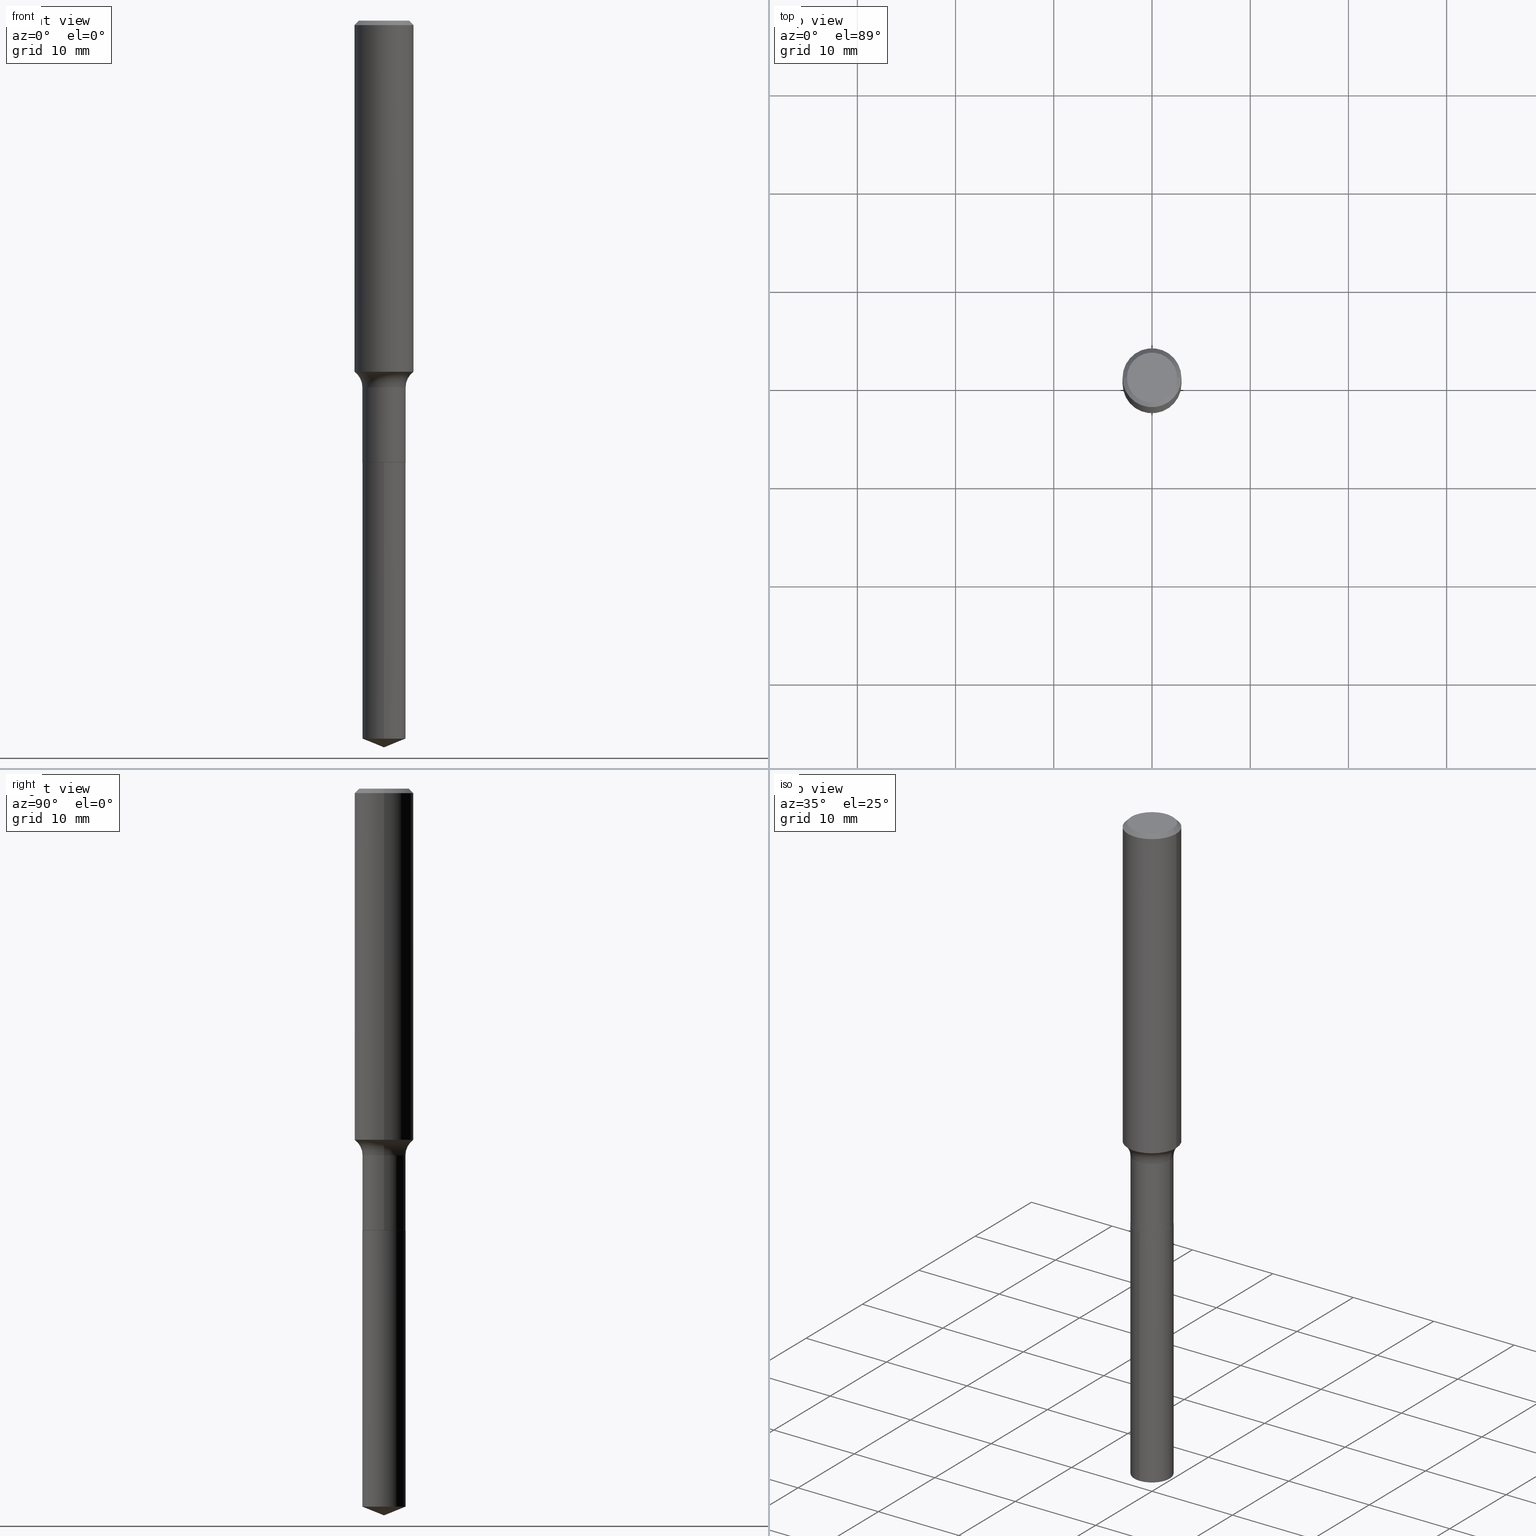
[diagram: canonical four-view strip — front | top / right | iso, engineering-drawing reading convention]
A machine part, canonical four-view strip (front | top / right | iso — engineering-drawing reading convention). The complete STEP part file that produces these views, byte-faithful:
ISO-10303-21;
HEADER;
FILE_DESCRIPTION (( 'STEP AP203' ),
    '1' );
FILE_NAME ('69237.STEP',
    '2024-04-19T17:28:28',
    ( '' ),
    ( '' ),
    'SwSTEP 2.0',
    'SolidWorks 2023',
    '' );
FILE_SCHEMA (( 'CONFIG_CONTROL_DESIGN' ));
ENDSEC;

DATA;
#1 = CARTESIAN_POINT ( 'NONE',  ( 7.123532340689703884E-29, -1.017085454053675039E-14, -2.912999999999999812 ) ) ;
#2 = DIRECTION ( 'NONE',  ( -2.445428197971062335E-29, 3.491539492116975712E-15, 1.000000000000000000 ) ) ;
#3 = CIRCLE ( 'NONE', #191, 0.1180999999999999966 ) ;
#4 = CARTESIAN_POINT ( 'NONE',  ( 0.000000000000000000, 0.000000000000000000, 0.000000000000000000 ) ) ;
#5 = EDGE_LOOP ( 'NONE', ( #470, #190, #327, #266 ) ) ;
#6 = DATE_AND_TIME ( #202, #309 ) ;
#7 = CARTESIAN_POINT ( 'NONE',  ( 0.08609999999999996823, -6.785693982041650218E-15, -1.771299999999999653 ) ) ;
#8 = CONICAL_SURFACE ( 'NONE', #263, 0.1180999999999999966, 0.7853981633974452814 ) ;
#9 = APPROVAL_PERSON_ORGANIZATION ( #468, #20, #301 ) ;
#10 = CALENDAR_DATE ( 2024, 19, 4 ) ;
#11 = CARTESIAN_POINT ( 'NONE',  ( -0.1180999999999999966, -1.648688559709055710E-15, -0.01771500000000011607 ) ) ;
#12 = DIRECTION ( 'NONE',  ( -6.982962677686265133E-15, -1.000000000000000000, 3.498761904101795214E-15 ) ) ;
#13 = CALENDAR_DATE ( 2024, 19, 4 ) ;
#14 = CARTESIAN_POINT ( 'NONE',  ( 4.331658896395732410E-29, -6.184460895492863090E-15, -1.771299999999999653 ) ) ;
#15 = CALENDAR_DATE ( 2024, 19, 4 ) ;
#16 = DIRECTION ( 'NONE',  ( 1.000000000000000000, -6.982962677686266711E-15, 0.000000000000000000 ) ) ;
#17 = CARTESIAN_POINT ( 'NONE',  ( 4.331658896395732410E-29, -6.184460895492863090E-15, -1.771299999999999653 ) ) ;
#18 = EDGE_CURVE ( 'NONE', #145, #410, #46, .T. ) ;
#19 = DIRECTION ( 'NONE',  ( -2.445468806185136597E-29, 3.491481338843145583E-15, 1.000000000000000000 ) ) ;
#20 = APPROVAL ( #386, 'UNSPECIFIED' ) ;
#21 = CIRCLE ( 'NONE', #252, 0.08659999999999998255 ) ;
#22 = CARTESIAN_POINT ( 'NONE',  ( 4.331658896395732410E-29, -6.184460895492863090E-15, -1.771299999999999653 ) ) ;
#23 = PLANE ( 'NONE',  #89 ) ;
#24 = LINE ( 'NONE', #489, #467 ) ;
#25 = VERTEX_POINT ( 'NONE', #50 ) ;
#26 = ORIENTED_EDGE ( 'NONE', *, *, #211, .T. ) ;
#27 = AXIS2_PLACEMENT_3D ( 'NONE', #144, #245, #105 ) ;
#28 = CARTESIAN_POINT ( 'NONE',  ( -0.1645999999999999408, -3.962924225038298547E-15, -1.469999999999999529 ) ) ;
#29 = ORIENTED_EDGE ( 'NONE', *, *, #255, .F. ) ;
#30 = ADVANCED_FACE ( 'NONE', ( #374 ), #333, .T. ) ;
#31 = DIRECTION ( 'NONE',  ( -0.7071067811865453523, 2.468850131082234184E-15, -0.7071067811865496822 ) ) ;
#32 = VERTEX_POINT ( 'NONE', #256 ) ;
#33 = EDGE_CURVE ( 'NONE', #32, #249, #412, .T. ) ;
#34 = EDGE_LOOP ( 'NONE', ( #336, #157, #66, #114 ) ) ;
#35 = ORIENTED_EDGE ( 'NONE', *, *, #116, .F. ) ;
#36 = AXIS2_PLACEMENT_3D ( 'NONE', #87, #159, #298 ) ;
#37 = DIRECTION ( 'NONE',  ( -6.982962677686265922E-15, -1.000000000000000000, 3.154558884138872662E-15 ) ) ;
#38 = CARTESIAN_POINT ( 'NONE',  ( 3.441694406790502504E-29, -4.913827469365863983E-15, -1.407376122764555149 ) ) ;
#39 = VERTEX_POINT ( 'NONE', #11 ) ;
#40 = CARTESIAN_POINT ( 'NONE',  ( 0.08659999999999996867, -6.047245678876305299E-16, 4.222769087839279152E-30 ) ) ;
#41 = APPROVAL_DATE_TIME ( #228, #304 ) ;
#42 = ADVANCED_BREP_SHAPE_REPRESENTATION ( '69237', ( #287, #139, #427 ), #147 ) ;
#43 = ORIENTED_EDGE ( 'NONE', *, *, #192, .F. ) ;
#44 = EDGE_CURVE ( 'NONE', #185, #303, #398, .T. ) ;
#45 = LINE ( 'NONE', #196, #387 ) ;
#46 = CIRCLE ( 'NONE', #314, 0.08609999999999996823 ) ;
#47 = DIRECTION ( 'NONE',  ( 1.000000000000000000, -6.982962677686264344E-15, 0.000000000000000000 ) ) ;
#48 = CIRCLE ( 'NONE', #59, 0.1181000000000001632 ) ;
#49 = EDGE_CURVE ( 'NONE', #410, #145, #404, .T. ) ;
#50 = CARTESIAN_POINT ( 'NONE',  ( 0.1181000000000001909, -5.738515361600613034E-15, -1.407376122764555149 ) ) ;
#51 =( LENGTH_UNIT ( ) NAMED_UNIT ( * ) SI_UNIT ( $, .METRE. ) );
#52 = EDGE_CURVE ( 'NONE', #249, #32, #167, .T. ) ;
#53 = LINE ( 'NONE', #163, #73 ) ;
#54 = DIRECTION ( 'NONE',  ( 1.000000000000000000, -6.982962677686264344E-15, 0.000000000000000000 ) ) ;
#55 = APPROVAL_STATUS ( 'not_yet_approved' ) ;
#56 = DIRECTION ( 'NONE',  ( 1.000000000000000000, -6.982962677686266711E-15, 4.876176775795936353E-29 ) ) ;
#57 = CARTESIAN_POINT ( 'NONE',  ( 5.011033706304132718E-46, -7.154428071060963220E-32, -2.049109640503330010E-17 ) ) ;
#58 = TOROIDAL_SURFACE ( 'NONE', #126, 0.1645999999999999408, 0.07799999999999999989 ) ;
#59 = AXIS2_PLACEMENT_3D ( 'NONE', #460, #259, #340 ) ;
#60 = CARTESIAN_POINT ( 'NONE',  ( 7.038041986961636871E-29, -1.004858720652032268E-14, -2.878011328842675631 ) ) ;
#61 = DIRECTION ( 'NONE',  ( -2.445468806185136597E-29, 3.491481338843145583E-15, 1.000000000000000000 ) ) ;
#62 = FACE_OUTER_BOUND ( 'NONE', #187, .T. ) ;
#63 = DIRECTION ( 'NONE',  ( 6.588037525764800757E-15, 0.9271838545667901998, 0.3746065934159050204 ) ) ;
#64 = ADVANCED_FACE ( 'NONE', ( #311 ), #438, .T. ) ;
#65 = CARTESIAN_POINT ( 'NONE',  ( 6.153300091683171414E-16, 0.08659999999998996278, -2.878011328842676075 ) ) ;
#66 = ORIENTED_EDGE ( 'NONE', *, *, #481, .F. ) ;
#67 = AXIS2_PLACEMENT_3D ( 'NONE', #212, #168, #131 ) ;
#68 = EDGE_CURVE ( 'NONE', #410, #418, #357, .T. ) ;
#69 = LOCAL_TIME ( 13, 28, 28.00000000000000000, #279 ) ;
#70 = ORIENTED_EDGE ( 'NONE', *, *, #18, .F. ) ;
#71 = CC_DESIGN_PERSON_AND_ORGANIZATION_ASSIGNMENT ( #478, #445, ( #480 ) ) ;
#72 = ORIENTED_EDGE ( 'NONE', *, *, #215, .T. ) ;
#73 = VECTOR ( 'NONE', #91, 39.37007874015748143 ) ;
#74 = ORIENTED_EDGE ( 'NONE', *, *, #211, .F. ) ;
#75 = DIRECTION ( 'NONE',  ( -6.982962677686266711E-15, -1.000000000000000000, 3.491481338843145583E-15 ) ) ;
#76 = ORIENTED_EDGE ( 'NONE', *, *, #250, .F. ) ;
#77 = DIRECTION ( 'NONE',  ( 1.000000000000000000, -6.982962677686267499E-15, 4.883557194083112901E-29 ) ) ;
#78 = EDGE_CURVE ( 'NONE', #240, #417, #361, .T. ) ;
#79 = VECTOR ( 'NONE', #342, 39.37007874015748143 ) ;
#80 = LOCAL_TIME ( 13, 28, 28.00000000000000000, #195 ) ;
#81 = DIRECTION ( 'NONE',  ( -6.474490251793187306E-15, -0.9271838545667875353, 0.3746065934159114597 ) ) ;
#82 = DATE_AND_TIME ( #13, #206 ) ;
#83 = MECHANICAL_CONTEXT ( 'NONE', #230, 'mechanical' ) ;
#84 = APPROVAL_DATE_TIME ( #82, #20 ) ;
#85 = ORIENTED_EDGE ( 'NONE', *, *, #255, .T. ) ;
#86 = ADVANCED_FACE ( 'NONE', ( #316 ), #93, .T. ) ;
#87 = CARTESIAN_POINT ( 'NONE',  ( 4.331658896395732410E-29, -6.184460895492863090E-15, -1.771299999999999653 ) ) ;
#88 = APPROVAL_STATUS ( 'not_yet_approved' ) ;
#89 = AXIS2_PLACEMENT_3D ( 'NONE', #448, #97, #475 ) ;
#90 = APPROVAL_PERSON_ORGANIZATION ( #95, #477, #447 ) ;
#91 = DIRECTION ( 'NONE',  ( -2.445468806185136877E-29, 3.491481338843145188E-15, 1.000000000000000000 ) ) ;
#92 = DIRECTION ( 'NONE',  ( -6.982962677686265922E-15, -1.000000000000000000, 3.154558884138872662E-15 ) ) ;
#93 = CYLINDRICAL_SURFACE ( 'NONE', #221, 0.08659999999999998255 ) ;
#94 = ADVANCED_FACE ( 'NONE', ( #443 ), #136, .T. ) ;
#95 = PERSON_AND_ORGANIZATION ( #217, #318 ) ;
#96 = CIRCLE ( 'NONE', #413, 0.07799999999999999989 ) ;
#97 = DIRECTION ( 'NONE',  ( 2.438088387897960049E-29, -3.491481338843145188E-15, -1.000000000000000000 ) ) ;
#98 = DIRECTION ( 'NONE',  ( -2.445468806185136877E-29, 3.491481338843145188E-15, 1.000000000000000000 ) ) ;
#99 = DIRECTION ( 'NONE',  ( -2.445428197971062335E-29, 3.491539492116975712E-15, 1.000000000000000000 ) ) ;
#100 = ORIENTED_EDGE ( 'NONE', *, *, #250, .T. ) ;
#101 = DIRECTION ( 'NONE',  ( -2.445468806185136597E-29, 3.491481338843145583E-15, 1.000000000000000000 ) ) ;
#102 = FACE_OUTER_BOUND ( 'NONE', #429, .T. ) ;
#103 = CARTESIAN_POINT ( 'NONE',  ( 3.594839145092149699E-29, -5.132477568099422441E-15, -1.469999999999999529 ) ) ;
#104 = ORIENTED_EDGE ( 'NONE', *, *, #322, .T. ) ;
#105 = DIRECTION ( 'NONE',  ( -6.982962677686265922E-15, -1.000000000000000000, 6.309117768277745325E-15 ) ) ;
#106 = CARTESIAN_POINT ( 'NONE',  ( 4.332147990156998495E-31, -6.185159191760672860E-17, -0.01771500000000011607 ) ) ;
#107 = CC_DESIGN_DATE_AND_TIME_ASSIGNMENT ( #433, #428, ( #243 ) ) ;
#108 = AXIS2_PLACEMENT_3D ( 'NONE', #103, #19, #281 ) ;
#109 = AXIS2_PLACEMENT_3D ( 'NONE', #38, #268, #261 ) ;
#110 = CARTESIAN_POINT ( 'NONE',  ( -0.1181000000000001909, -4.074676498433184208E-15, -1.407376122764555149 ) ) ;
#111 = ADVANCED_FACE ( 'NONE', ( #237 ), #208, .F. ) ;
#112 = APPLICATION_CONTEXT ( 'configuration controlled 3d designs of mechanical parts and assemblies' ) ;
#113 = ORIENTED_EDGE ( 'NONE', *, *, #192, .T. ) ;
#114 = ORIENTED_EDGE ( 'NONE', *, *, #411, .F. ) ;
#115 = AXIS2_PLACEMENT_3D ( 'NONE', #397, #61, #56 ) ;
#116 = EDGE_CURVE ( 'NONE', #145, #120, #171, .T. ) ;
#117 = DIRECTION ( 'NONE',  ( 2.445468806185136597E-29, -3.491481338843145583E-15, -1.000000000000000000 ) ) ;
#118 = EDGE_LOOP ( 'NONE', ( #273, #113, #154 ) ) ;
#119 = ORIENTED_EDGE ( 'NONE', *, *, #68, .F. ) ;
#120 = VERTEX_POINT ( 'NONE', #276 ) ;
#121 = EDGE_LOOP ( 'NONE', ( #294, #238, #26, #188 ) ) ;
#122 = CARTESIAN_POINT ( 'NONE',  ( -6.047245678875604199E-16, -0.08660000000001008558, -2.878011328842675187 ) ) ;
#123 = ORIENTED_EDGE ( 'NONE', *, *, #371, .F. ) ;
#124 = FACE_OUTER_BOUND ( 'NONE', #118, .T. ) ;
#125 = CLOSED_SHELL ( 'NONE', ( #313, #355, #244, #177, #30, #135, #170, #94, #180, #277, #111, #141 ) ) ;
#126 = AXIS2_PLACEMENT_3D ( 'NONE', #323, #407, #77 ) ;
#127 = ORIENTED_EDGE ( 'NONE', *, *, #33, .F. ) ;
#128 = CARTESIAN_POINT ( 'NONE',  ( 0.1180999999999999966, -8.720764054544246253E-16, -0.01771500000000011607 ) ) ;
#129 = ORIENTED_EDGE ( 'NONE', *, *, #173, .T. ) ;
#130 = PERSON_AND_ORGANIZATION_ROLE ( 'design_supplier' ) ;
#131 = DIRECTION ( 'NONE',  ( 1.000000000000000000, -6.982962677686266711E-15, 4.875668750515085695E-29 ) ) ;
#132 = AXIS2_PLACEMENT_3D ( 'NONE', #246, #367, #369 ) ;
#133 = CARTESIAN_POINT ( 'NONE',  ( 0.1180999999999999966, -8.865394841523548556E-16, -0.01771500000000011607 ) ) ;
#134 = DIRECTION ( 'NONE',  ( -2.445468806185136597E-29, 3.491481338843145583E-15, 1.000000000000000000 ) ) ;
#135 = ADVANCED_FACE ( 'NONE', ( #440 ), #203, .T. ) ;
#136 = CYLINDRICAL_SURFACE ( 'NONE', #146, 0.1181000000000000799 ) ;
#137 = AXIS2_PLACEMENT_3D ( 'NONE', #288, #338, #326 ) ;
#138 = CARTESIAN_POINT ( 'NONE',  ( 0.000000000000000000, 0.000000000000000000, 0.000000000000000000 ) ) ;
#139 = MANIFOLD_SOLID_BREP ( 'Body-Move/Copy2[2]', #125 ) ;
#140 = CC_DESIGN_DATE_AND_TIME_ASSIGNMENT ( #6, #351, ( #155 ) ) ;
#141 = ADVANCED_FACE ( 'NONE', ( #164 ), #324, .T. ) ;
#142 = DIRECTION ( 'NONE',  ( -2.445428197971062615E-29, 3.491539492116975712E-15, 1.000000000000000000 ) ) ;
#143 = DIRECTION ( 'NONE',  ( 2.445428197971062055E-29, -3.491539492116975712E-15, -1.000000000000000000 ) ) ;
#144 = CARTESIAN_POINT ( 'NONE',  ( 7.038041986961636871E-29, -1.004858720652032268E-14, -2.878011328842675631 ) ) ;
#145 = VERTEX_POINT ( 'NONE', #360 ) ;
#146 = AXIS2_PLACEMENT_3D ( 'NONE', #138, #134, #272 ) ;
#147 =( GEOMETRIC_REPRESENTATION_CONTEXT ( 3 ) GLOBAL_UNCERTAINTY_ASSIGNED_CONTEXT ( ( #472 ) ) GLOBAL_UNIT_ASSIGNED_CONTEXT ( ( #431, #165, #306 ) ) REPRESENTATION_CONTEXT ( 'NONE', 'WORKASPACE' ) );
#148 = ORIENTED_EDGE ( 'NONE', *, *, #186, .F. ) ;
#149 = ORIENTED_EDGE ( 'NONE', *, *, #359, .F. ) ;
#150 = ORIENTED_EDGE ( 'NONE', *, *, #409, .F. ) ;
#151 = ORIENTED_EDGE ( 'NONE', *, *, #33, .T. ) ;
#152 = AXIS2_PLACEMENT_3D ( 'NONE', #483, #101, #239 ) ;
#153 = DIRECTION ( 'NONE',  ( -2.445468806185136597E-29, 3.491481338843145583E-15, 1.000000000000000000 ) ) ;
#154 = ORIENTED_EDGE ( 'NONE', *, *, #302, .F. ) ;
#155 = PRODUCT_DEFINITION ( 'UNKNOWN', '', #363, #439 ) ;
#156 = CARTESIAN_POINT ( 'NONE',  ( 0.1181000000000000799, -8.246878922347486570E-16, 5.758764772215004644E-30 ) ) ;
#157 = ORIENTED_EDGE ( 'NONE', *, *, #225, .T. ) ;
#158 = EDGE_LOOP ( 'NONE', ( #224, #337, #383, #76 ) ) ;
#159 = DIRECTION ( 'NONE',  ( -2.445428197971062335E-29, 3.491539492116975712E-15, 1.000000000000000000 ) ) ;
#160 = DIRECTION ( 'NONE',  ( -2.445468806185136597E-29, 3.491481338843145583E-15, 1.000000000000000000 ) ) ;
#161 = COORDINATED_UNIVERSAL_TIME_OFFSET ( 5, 0, .BEHIND. ) ;
#162 = CARTESIAN_POINT ( 'NONE',  ( 0.08659999999999998255, -6.787439722711072510E-15, -1.770799999999999930 ) ) ;
#163 = CARTESIAN_POINT ( 'NONE',  ( -0.08659999999999996867, 6.153300091682465383E-16, -4.259797788160746705E-30 ) ) ;
#164 = FACE_OUTER_BOUND ( 'NONE', #461, .T. ) ;
#165 =( NAMED_UNIT ( * ) PLANE_ANGLE_UNIT ( ) SI_UNIT ( $, .RADIAN. ) );
#166 = COORDINATED_UNIVERSAL_TIME_OFFSET ( 5, 0, .BEHIND. ) ;
#167 = CIRCLE ( 'NONE', #67, 0.1003850000000000159 ) ;
#168 = DIRECTION ( 'NONE',  ( -2.445468806185136597E-29, 3.491481338843145583E-15, 1.000000000000000000 ) ) ;
#169 = CIRCLE ( 'NONE', #219, 0.08659999999999998255 ) ;
#170 = ADVANCED_FACE ( 'NONE', ( #175 ), #58, .F. ) ;
#171 = LINE ( 'NONE', #278, #426 ) ;
#172 = CARTESIAN_POINT ( 'NONE',  ( 4.332147990156998495E-31, -6.185159191760672860E-17, -0.01771500000000011607 ) ) ;
#173 = EDGE_CURVE ( 'NONE', #424, #416, #21, .T. ) ;
#174 = AXIS2_PLACEMENT_3D ( 'NONE', #450, #143, #321 ) ;
#175 = FACE_OUTER_BOUND ( 'NONE', #121, .T. ) ;
#176 = DIRECTION ( 'NONE',  ( -2.445468806185136597E-29, 3.491481338843145583E-15, 1.000000000000000000 ) ) ;
#177 = ADVANCED_FACE ( 'NONE', ( #491 ), #214, .F. ) ;
#178 = LINE ( 'NONE', #284, #458 ) ;
#179 = ORIENTED_EDGE ( 'NONE', *, *, #232, .T. ) ;
#180 = ADVANCED_FACE ( 'NONE', ( #293 ), #414, .T. ) ;
#181 = AXIS2_PLACEMENT_3D ( 'NONE', #189, #2, #292 ) ;
#182 = EDGE_LOOP ( 'NONE', ( #253, #251, #380, #74 ) ) ;
#183 = DIRECTION ( 'NONE',  ( -2.445428197971062615E-29, 3.491539492116975712E-15, 1.000000000000000000 ) ) ;
#184 = EDGE_LOOP ( 'NONE', ( #194, #213, #248, #218 ) ) ;
#185 = VERTEX_POINT ( 'NONE', #247 ) ;
#186 = EDGE_CURVE ( 'NONE', #303, #424, #415, .T. ) ;
#187 = EDGE_LOOP ( 'NONE', ( #455, #370, #317, #119 ) ) ;
#188 = ORIENTED_EDGE ( 'NONE', *, *, #78, .T. ) ;
#189 = CARTESIAN_POINT ( 'NONE',  ( -8.915309643750284617E-28, 1.272914331953719616E-13, 36.45707874015747763 ) ) ;
#190 = ORIENTED_EDGE ( 'NONE', *, *, #371, .T. ) ;
#191 = AXIS2_PLACEMENT_3D ( 'NONE', #466, #160, #193 ) ;
#192 = EDGE_CURVE ( 'NONE', #185, #379, #331, .T. ) ;
#193 = DIRECTION ( 'NONE',  ( 1.000000000000000000, -6.982962677686266711E-15, 0.000000000000000000 ) ) ;
#194 = ORIENTED_EDGE ( 'NONE', *, *, #359, .T. ) ;
#195 = COORDINATED_UNIVERSAL_TIME_OFFSET ( 5, 0, .BEHIND. ) ;
#196 = CARTESIAN_POINT ( 'NONE',  ( -0.1181000000000000799, 8.391509709326788873E-16, -5.809262341591047988E-30 ) ) ;
#197 = DIRECTION ( 'NONE',  ( 1.000000000000000000, 0.000000000000000000, 0.000000000000000000 ) ) ;
#198 = PERSON_AND_ORGANIZATION_ROLE ( 'creator' ) ;
#199 = AXIS2_PLACEMENT_3D ( 'NONE', #57, #482, #400 ) ;
#200 = AXIS2_PLACEMENT_3D ( 'NONE', #106, #204, #16 ) ;
#201 = DIRECTION ( 'NONE',  ( -2.445468806185136877E-29, 3.491481338843145188E-15, 1.000000000000000000 ) ) ;
#202 = CALENDAR_DATE ( 2024, 19, 4 ) ;
#203 = CYLINDRICAL_SURFACE ( 'NONE', #262, 0.08659999999999996867 ) ;
#204 = DIRECTION ( 'NONE',  ( -2.445468806185136597E-29, 3.491481338843145583E-15, 1.000000000000000000 ) ) ;
#205 = DIRECTION ( 'NONE',  ( 0.7071067811866320607, -2.468850131083142557E-15, 0.7071067811864629737 ) ) ;
#206 = LOCAL_TIME ( 13, 28, 28.00000000000000000, #161 ) ;
#207 = DIRECTION ( 'NONE',  ( -2.445428197971062335E-29, 3.491539492116975712E-15, 1.000000000000000000 ) ) ;
#208 = PLANE ( 'NONE',  #353 ) ;
#209 = PERSON_AND_ORGANIZATION ( #217, #318 ) ;
#210 = FACE_OUTER_BOUND ( 'NONE', #291, .T. ) ;
#211 = EDGE_CURVE ( 'NONE', #25, #240, #377, .T. ) ;
#212 = CARTESIAN_POINT ( 'NONE',  ( 5.011033706304132718E-46, -7.154428071060963220E-32, -2.049109640503330010E-17 ) ) ;
#213 = ORIENTED_EDGE ( 'NONE', *, *, #186, .T. ) ;
#214 = TOROIDAL_SURFACE ( 'NONE', #137, 0.1645999999999999408, 0.07799999999999999989 ) ;
#215 = EDGE_CURVE ( 'NONE', #120, #417, #53, .T. ) ;
#216 = ORIENTED_EDGE ( 'NONE', *, *, #52, .T. ) ;
#217 = PERSON ( 'UNSPECIFIED', 'UNSPECIFIED', 'UNSPECIFIED', ('UNSPECIFIED'), ('UNSPECIFIED'), ('UNSPECIFIED') ) ;
#218 = ORIENTED_EDGE ( 'NONE', *, *, #322, .F. ) ;
#219 = AXIS2_PLACEMENT_3D ( 'NONE', #282, #452, #241 ) ;
#220 = DIRECTION ( 'NONE',  ( 1.000000000000000000, -6.982962677686270655E-15, 0.000000000000000000 ) ) ;
#221 = AXIS2_PLACEMENT_3D ( 'NONE', #476, #354, #312 ) ;
#222 = CIRCLE ( 'NONE', #152, 0.08659999999999995479 ) ;
#223 = PERSON_AND_ORGANIZATION ( #217, #318 ) ;
#224 = ORIENTED_EDGE ( 'NONE', *, *, #225, .F. ) ;
#225 = EDGE_CURVE ( 'NONE', #332, #39, #45, .T. ) ;
#226 = CARTESIAN_POINT ( 'NONE',  ( 0.000000000000000000, 0.000000000000000000, 0.000000000000000000 ) ) ;
#227 = DIRECTION ( 'NONE',  ( -2.445468806185136597E-29, 3.491481338843145583E-15, 1.000000000000000000 ) ) ;
#228 = DATE_AND_TIME ( #10, #280 ) ;
#229 = CIRCLE ( 'NONE', #132, 0.08659999999999998255 ) ;
#230 = APPLICATION_CONTEXT ( 'configuration controlled 3d designs of mechanical parts and assemblies' ) ;
#231 = DIRECTION ( 'NONE',  ( -2.438088387897960049E-29, 3.491481338843145188E-15, 1.000000000000000000 ) ) ;
#232 = EDGE_CURVE ( 'NONE', #418, #120, #169, .T. ) ;
#233 = CARTESIAN_POINT ( 'NONE',  ( 0.08659999999999995479, -5.737202135987053365E-15, -1.469999999999999529 ) ) ;
#234 = CARTESIAN_POINT ( 'NONE',  ( 0.000000000000000000, 0.000000000000000000, 0.000000000000000000 ) ) ;
#235 = APPROVAL_DATE_TIME ( #394, #477 ) ;
#236 = DIRECTION ( 'NONE',  ( -6.982962677686265922E-15, -1.000000000000000000, 6.309117768277745325E-15 ) ) ;
#237 = FACE_OUTER_BOUND ( 'NONE', #296, .T. ) ;
#238 = ORIENTED_EDGE ( 'NONE', *, *, #391, .F. ) ;
#239 = DIRECTION ( 'NONE',  ( 1.000000000000000000, -6.982962677686272233E-15, 0.000000000000000000 ) ) ;
#240 = VERTEX_POINT ( 'NONE', #233 ) ;
#241 = DIRECTION ( 'NONE',  ( 1.000000000000000000, -6.982962677686269866E-15, 0.000000000000000000 ) ) ;
#242 = CIRCLE ( 'NONE', #36, 0.08659999999999998255 ) ;
#243 = SECURITY_CLASSIFICATION ( '', '', #258 ) ;
#244 = ADVANCED_FACE ( 'NONE', ( #399 ), #392, .T. ) ;
#245 = DIRECTION ( 'NONE',  ( -2.445428197971062335E-29, 3.491539492116975712E-15, 1.000000000000000000 ) ) ;
#246 = CARTESIAN_POINT ( 'NONE',  ( 4.330436161992639608E-29, -6.182715154823442375E-15, -1.770799999999999930 ) ) ;
#247 = CARTESIAN_POINT ( 'NONE',  ( 7.123532340689705005E-29, -1.017085454053675039E-14, -2.912999999999999812 ) ) ;
#248 = ORIENTED_EDGE ( 'NONE', *, *, #492, .F. ) ;
#249 = VERTEX_POINT ( 'NONE', #449 ) ;
#250 = EDGE_CURVE ( 'NONE', #39, #285, #451, .T. ) ;
#251 = ORIENTED_EDGE ( 'NONE', *, *, #264, .T. ) ;
#252 = AXIS2_PLACEMENT_3D ( 'NONE', #419, #329, #37 ) ;
#253 = ORIENTED_EDGE ( 'NONE', *, *, #465, .F. ) ;
#254 = CARTESIAN_POINT ( 'NONE',  ( 0.1645999999999999408, -6.281873224846581411E-15, -1.469999999999999529 ) ) ;
#255 = EDGE_CURVE ( 'NONE', #32, #39, #24, .T. ) ;
#256 = CARTESIAN_POINT ( 'NONE',  ( -0.1003850000000000159, 7.319105043583384717E-16, -2.049109640503831060E-17 ) ) ;
#257 = ORIENTED_EDGE ( 'NONE', *, *, #420, .F. ) ;
#258 = SECURITY_CLASSIFICATION_LEVEL ( 'unclassified' ) ;
#259 = DIRECTION ( 'NONE',  ( -2.445468806185136597E-29, 3.491481338843145583E-15, 1.000000000000000000 ) ) ;
#260 = CARTESIAN_POINT ( 'NONE',  ( 4.332147990156998495E-31, -6.185159191760672860E-17, -0.01771500000000011607 ) ) ;
#261 = DIRECTION ( 'NONE',  ( 1.000000000000000000, -6.982962677686263555E-15, 0.000000000000000000 ) ) ;
#262 = AXIS2_PLACEMENT_3D ( 'NONE', #234, #349, #393 ) ;
#263 = AXIS2_PLACEMENT_3D ( 'NONE', #172, #444, #454 ) ;
#264 = EDGE_CURVE ( 'NONE', #332, #417, #96, .T. ) ;
#265 = APPLICATION_PROTOCOL_DEFINITION ( 'international standard', 'config_control_design', 1994, #230 ) ;
#266 = ORIENTED_EDGE ( 'NONE', *, *, #356, .F. ) ;
#267 = PERSON_AND_ORGANIZATION_ROLE ( 'classification_officer' ) ;
#268 = DIRECTION ( 'NONE',  ( -2.445468806185136597E-29, 3.491481338843145583E-15, 1.000000000000000000 ) ) ;
#269 = VECTOR ( 'NONE', #63, 39.37007874015748143 ) ;
#270 = CIRCLE ( 'NONE', #27, 0.08659999999999998255 ) ;
#271 = APPROVAL_PERSON_ORGANIZATION ( #389, #304, #421 ) ;
#272 = DIRECTION ( 'NONE',  ( 1.000000000000000000, -6.982962677686266711E-15, 4.876176775795936353E-29 ) ) ;
#273 = ORIENTED_EDGE ( 'NONE', *, *, #44, .F. ) ;
#274 = DIRECTION ( 'NONE',  ( -0.7071067811866320607, 7.493145998870660238E-15, 0.7071067811864629737 ) ) ;
#275 = DIRECTION ( 'NONE',  ( 7.105427357601001859E-15, 1.000000000000000000, -3.491481338843145583E-15 ) ) ;
#276 = CARTESIAN_POINT ( 'NONE',  ( -0.08659999999999998255, -5.042266352293185968E-15, -1.770799999999999930 ) ) ;
#277 = ADVANCED_FACE ( 'NONE', ( #102 ), #23, .F. ) ;
#278 = CARTESIAN_POINT ( 'NONE',  ( -0.08609999999999996823, -5.572683600003417154E-15, -1.771299999999999653 ) ) ;
#279 = COORDINATED_UNIVERSAL_TIME_OFFSET ( 5, 0, .BEHIND. ) ;
#280 = LOCAL_TIME ( 13, 28, 28.00000000000000000, #166 ) ;
#281 = DIRECTION ( 'NONE',  ( 1.000000000000000000, -6.982962677686272233E-15, 0.000000000000000000 ) ) ;
#282 = CARTESIAN_POINT ( 'NONE',  ( 4.330436161992639608E-29, -6.182715154823442375E-15, -1.770799999999999930 ) ) ;
#283 = DIMENSIONAL_EXPONENTS ( 1.000000000000000000, 0.000000000000000000, 0.000000000000000000, 0.000000000000000000, 0.000000000000000000, 0.000000000000000000, 0.000000000000000000 ) ;
#284 = CARTESIAN_POINT ( 'NONE',  ( -6.047245678875872412E-16, -0.08660000000000617204, -1.771299999999999430 ) ) ;
#285 = VERTEX_POINT ( 'NONE', #133 ) ;
#286 = EDGE_LOOP ( 'NONE', ( #375, #129 ) ) ;
#287 = MANIFOLD_SOLID_BREP ( 'Body-Move/Copy2[1]', #376 ) ;
#288 = CARTESIAN_POINT ( 'NONE',  ( 3.594839145092149699E-29, -5.132477568099422441E-15, -1.469999999999999529 ) ) ;
#289 = ORIENTED_EDGE ( 'NONE', *, *, #409, .T. ) ;
#290 = AXIS2_PLACEMENT_3D ( 'NONE', #260, #117, #425 ) ;
#291 = EDGE_LOOP ( 'NONE', ( #358, #289, #401, #29 ) ) ;
#292 = DIRECTION ( 'NONE',  ( -6.982962677686265133E-15, -1.000000000000000000, 3.498761904101795214E-15 ) ) ;
#293 = FACE_OUTER_BOUND ( 'NONE', #330, .T. ) ;
#294 = ORIENTED_EDGE ( 'NONE', *, *, #264, .F. ) ;
#295 = DIRECTION ( 'NONE',  ( -2.445468806185136877E-29, 3.491481338843145188E-15, 1.000000000000000000 ) ) ;
#296 = EDGE_LOOP ( 'NONE', ( #464, #70 ) ) ;
#297 = CC_DESIGN_PERSON_AND_ORGANIZATION_ASSIGNMENT ( #471, #198, ( #363 ) ) ;
#298 = DIRECTION ( 'NONE',  ( -6.982962677686265922E-15, -1.000000000000000000, 3.154558884138872662E-15 ) ) ;
#299 = EDGE_LOOP ( 'NONE', ( #43, #373, #149 ) ) ;
#300 = LINE ( 'NONE', #40, #436 ) ;
#301 = APPROVAL_ROLE ( '' ) ;
#302 = EDGE_CURVE ( 'NONE', #303, #379, #484, .T. ) ;
#303 = VERTEX_POINT ( 'NONE', #65 ) ;
#304 = APPROVAL ( #88, 'UNSPECIFIED' ) ;
#305 = CARTESIAN_POINT ( 'NONE',  ( 4.331658896395732410E-29, -6.184460895492863090E-15, -1.771299999999999653 ) ) ;
#306 =( NAMED_UNIT ( * ) SI_UNIT ( $, .STERADIAN. ) SOLID_ANGLE_UNIT ( ) );
#307 = VECTOR ( 'NONE', #205, 39.37007874015748143 ) ;
#308 = AXIS2_PLACEMENT_3D ( 'NONE', #22, #176, #319 ) ;
#309 = LOCAL_TIME ( 13, 28, 28.00000000000000000, #430 ) ;
#310 = CARTESIAN_POINT ( 'NONE',  ( 0.08609999999999996823, -6.785693982041650218E-15, -1.771299999999999653 ) ) ;
#311 = FACE_OUTER_BOUND ( 'NONE', #406, .T. ) ;
#312 = DIRECTION ( 'NONE',  ( -6.982962677686265922E-15, -1.000000000000000000, 3.154558884138872662E-15 ) ) ;
#313 = ADVANCED_FACE ( 'NONE', ( #62 ), #405, .T. ) ;
#314 = AXIS2_PLACEMENT_3D ( 'NONE', #432, #227, #47 ) ;
#315 = CIRCLE ( 'NONE', #109, 0.1181000000000001632 ) ;
#316 = FACE_OUTER_BOUND ( 'NONE', #184, .T. ) ;
#317 = ORIENTED_EDGE ( 'NONE', *, *, #232, .F. ) ;
#318 = ORGANIZATION ( 'UNSPECIFIED', 'UNSPECIFIED', '' ) ;
#319 = DIRECTION ( 'NONE',  ( 1.000000000000000000, -6.982962677686264344E-15, 0.000000000000000000 ) ) ;
#320 = ADVANCED_FACE ( 'NONE', ( #485 ), #486, .F. ) ;
#321 = DIRECTION ( 'NONE',  ( 6.982962677686265922E-15, 1.000000000000000000, -3.491539492116975712E-15 ) ) ;
#322 = EDGE_CURVE ( 'NONE', #379, #416, #178, .T. ) ;
#323 = CARTESIAN_POINT ( 'NONE',  ( 3.594839145092149699E-29, -5.132477568099422441E-15, -1.469999999999999529 ) ) ;
#324 = CONICAL_SURFACE ( 'NONE', #395, 0.08609999999999996823, 0.7853981633975678500 ) ;
#325 = VECTOR ( 'NONE', #201, 39.37007874015748143 ) ;
#326 = DIRECTION ( 'NONE',  ( 1.000000000000000000, -6.982962677686267499E-15, 4.883557194083112901E-29 ) ) ;
#327 = ORIENTED_EDGE ( 'NONE', *, *, #420, .T. ) ;
#328 = CC_DESIGN_APPROVAL ( #20, ( #363 ) ) ;
#329 = DIRECTION ( 'NONE',  ( -2.445428197971062335E-29, 3.491539492116975712E-15, 1.000000000000000000 ) ) ;
#330 = EDGE_LOOP ( 'NONE', ( #150, #127, #85, #100 ) ) ;
#331 = LINE ( 'NONE', #1, #396 ) ;
#332 = VERTEX_POINT ( 'NONE', #110 ) ;
#333 = CYLINDRICAL_SURFACE ( 'NONE', #346, 0.08659999999999996867 ) ;
#334 = AXIS2_PLACEMENT_3D ( 'NONE', #14, #99, #92 ) ;
#335 = CONICAL_SURFACE ( 'NONE', #474, 97.44436430772933022, 1.186823891356148186 ) ;
#336 = ORIENTED_EDGE ( 'NONE', *, *, #391, .T. ) ;
#337 = ORIENTED_EDGE ( 'NONE', *, *, #465, .T. ) ;
#338 = DIRECTION ( 'NONE',  ( -2.445468806185136597E-29, 3.491481338843145583E-15, 1.000000000000000000 ) ) ;
#339 = CARTESIAN_POINT ( 'NONE',  ( -8.915309643750284617E-28, 1.272914331953719616E-13, 36.45707874015747763 ) ) ;
#340 = DIRECTION ( 'NONE',  ( 1.000000000000000000, -6.982962677686263555E-15, 0.000000000000000000 ) ) ;
#341 = ORIENTED_EDGE ( 'NONE', *, *, #302, .T. ) ;
#342 = DIRECTION ( 'NONE',  ( 0.7071067811865453523, -7.319954787623248157E-15, -0.7071067811865496822 ) ) ;
#343 = SHAPE_DEFINITION_REPRESENTATION ( #437, #42 ) ;
#344 = ORIENTED_EDGE ( 'NONE', *, *, #173, .F. ) ;
#345 = DIRECTION ( 'NONE',  ( 0.000000000000000000, 0.000000000000000000, 1.000000000000000000 ) ) ;
#346 = AXIS2_PLACEMENT_3D ( 'NONE', #4, #153, #463 ) ;
#347 = CONICAL_SURFACE ( 'NONE', #181, 97.44436430772933022, 1.186823891356148186 ) ;
#348 = CARTESIAN_POINT ( 'NONE',  ( -0.08659999999999995479, -5.042266352293185968E-15, -1.469999999999999529 ) ) ;
#349 = DIRECTION ( 'NONE',  ( -2.445468806185136597E-29, 3.491481338843145583E-15, 1.000000000000000000 ) ) ;
#350 = LENGTH_MEASURE_WITH_UNIT ( LENGTH_MEASURE( 0.02539999999999999897 ), #51 );
#351 = DATE_TIME_ROLE ( 'creation_date' ) ;
#352 = DIRECTION ( 'NONE',  ( -2.445468806185136597E-29, 3.491481338843145583E-15, 1.000000000000000000 ) ) ;
#353 = AXIS2_PLACEMENT_3D ( 'NONE', #17, #231, #403 ) ;
#354 = DIRECTION ( 'NONE',  ( -2.445428197971062335E-29, 3.491539492116975712E-15, 1.000000000000000000 ) ) ;
#355 = ADVANCED_FACE ( 'NONE', ( #210 ), #8, .T. ) ;
#356 = EDGE_CURVE ( 'NONE', #417, #240, #222, .T. ) ;
#357 = LINE ( 'NONE', #310, #307 ) ;
#358 = ORIENTED_EDGE ( 'NONE', *, *, #52, .F. ) ;
#359 = EDGE_CURVE ( 'NONE', #379, #303, #270, .T. ) ;
#360 = CARTESIAN_POINT ( 'NONE',  ( -0.08609999999999996823, -5.570034372829306742E-15, -1.771299999999999653 ) ) ;
#361 = CIRCLE ( 'NONE', #108, 0.08659999999999995479 ) ;
#362 = AXIS2_PLACEMENT_3D ( 'NONE', #60, #207, #236 ) ;
#363 = PRODUCT_DEFINITION_FORMATION_WITH_SPECIFIED_SOURCE ( 'ANY', '', #480, .NOT_KNOWN. ) ;
#364 = CC_DESIGN_PERSON_AND_ORGANIZATION_ASSIGNMENT ( #223, #130, ( #363 ) ) ;
#365 = DIRECTION ( 'NONE',  ( -1.000000000000000000, 7.105427357600997914E-15, 0.000000000000000000 ) ) ;
#366 = ORIENTED_EDGE ( 'NONE', *, *, #68, .T. ) ;
#367 = DIRECTION ( 'NONE',  ( -2.445468806185136597E-29, 3.491481338843145583E-15, 1.000000000000000000 ) ) ;
#368 = ADVANCED_FACE ( 'NONE', ( #456 ), #347, .T. ) ;
#369 = DIRECTION ( 'NONE',  ( 1.000000000000000000, -6.982962677686269866E-15, 0.000000000000000000 ) ) ;
#370 = ORIENTED_EDGE ( 'NONE', *, *, #116, .T. ) ;
#371 = EDGE_CURVE ( 'NONE', #120, #418, #229, .T. ) ;
#372 = CARTESIAN_POINT ( 'NONE',  ( 6.153300091682898271E-16, 0.08659999999999380693, -1.771300000000000097 ) ) ;
#373 = ORIENTED_EDGE ( 'NONE', *, *, #44, .T. ) ;
#374 = FACE_OUTER_BOUND ( 'NONE', #469, .T. ) ;
#375 = ORIENTED_EDGE ( 'NONE', *, *, #492, .T. ) ;
#376 = CLOSED_SHELL ( 'NONE', ( #86, #368, #487, #64, #320 ) ) ;
#377 = CIRCLE ( 'NONE', #441, 0.07799999999999999989 ) ;
#378 = CARTESIAN_POINT ( 'NONE',  ( -6.047245678875872412E-16, -0.08660000000000617204, -1.771299999999999430 ) ) ;
#379 = VERTEX_POINT ( 'NONE', #122 ) ;
#380 = ORIENTED_EDGE ( 'NONE', *, *, #356, .T. ) ;
#381 = CC_DESIGN_PERSON_AND_ORGANIZATION_ASSIGNMENT ( #435, #267, ( #243 ) ) ;
#382 = CALENDAR_DATE ( 2024, 19, 4 ) ;
#383 = ORIENTED_EDGE ( 'NONE', *, *, #411, .T. ) ;
#384 = LINE ( 'NONE', #156, #325 ) ;
#385 = AXIS2_PLACEMENT_3D ( 'NONE', #446, #352, #54 ) ;
#386 = APPROVAL_STATUS ( 'not_yet_approved' ) ;
#387 = VECTOR ( 'NONE', #98, 39.37007874015748143 ) ;
#388 = ORIENTED_EDGE ( 'NONE', *, *, #78, .F. ) ;
#389 = PERSON_AND_ORGANIZATION ( #217, #318 ) ;
#390 = APPLICATION_PROTOCOL_DEFINITION ( 'international standard', 'config_control_design', 1994, #112 ) ;
#391 = EDGE_CURVE ( 'NONE', #25, #332, #48, .T. ) ;
#392 = CYLINDRICAL_SURFACE ( 'NONE', #115, 0.1181000000000000799 ) ;
#393 = DIRECTION ( 'NONE',  ( 1.000000000000000000, -6.982962677686267499E-15, 4.876176775795936353E-29 ) ) ;
#394 = DATE_AND_TIME ( #15, #69 ) ;
#395 = AXIS2_PLACEMENT_3D ( 'NONE', #305, #490, #422 ) ;
#396 = VECTOR ( 'NONE', #81, 39.37007874015748854 ) ;
#397 = CARTESIAN_POINT ( 'NONE',  ( 0.000000000000000000, 0.000000000000000000, 0.000000000000000000 ) ) ;
#398 = LINE ( 'NONE', #479, #269 ) ;
#399 = FACE_OUTER_BOUND ( 'NONE', #34, .T. ) ;
#400 = DIRECTION ( 'NONE',  ( 1.000000000000000000, -6.982962677686266711E-15, 4.875668750515085695E-29 ) ) ;
#401 = ORIENTED_EDGE ( 'NONE', *, *, #481, .T. ) ;
#402 = PERSON_AND_ORGANIZATION_ROLE ( 'creator' ) ;
#403 = DIRECTION ( 'NONE',  ( 1.000000000000000000, -6.982962677686265922E-15, 4.876176775795935793E-29 ) ) ;
#404 = CIRCLE ( 'NONE', #385, 0.08609999999999996823 ) ;
#405 = CONICAL_SURFACE ( 'NONE', #308, 0.08609999999999996823, 0.7853981633975678500 ) ;
#406 = EDGE_LOOP ( 'NONE', ( #148, #341, #104, #344 ) ) ;
#407 = DIRECTION ( 'NONE',  ( -2.445468806185136597E-29, 3.491481338843145583E-15, 1.000000000000000000 ) ) ;
#408 = ORIENTED_EDGE ( 'NONE', *, *, #18, .T. ) ;
#409 = EDGE_CURVE ( 'NONE', #249, #285, #423, .T. ) ;
#410 = VERTEX_POINT ( 'NONE', #7 ) ;
#411 = EDGE_CURVE ( 'NONE', #25, #285, #384, .T. ) ;
#412 = CIRCLE ( 'NONE', #199, 0.1003850000000000159 ) ;
#413 = AXIS2_PLACEMENT_3D ( 'NONE', #28, #275, #365 ) ;
#414 = CONICAL_SURFACE ( 'NONE', #290, 0.1180999999999999966, 0.7853981633974452814 ) ;
#415 = LINE ( 'NONE', #372, #488 ) ;
#416 = VERTEX_POINT ( 'NONE', #378 ) ;
#417 = VERTEX_POINT ( 'NONE', #348 ) ;
#418 = VERTEX_POINT ( 'NONE', #162 ) ;
#419 = CARTESIAN_POINT ( 'NONE',  ( 4.331658896395732410E-29, -6.184460895492863090E-15, -1.771299999999999653 ) ) ;
#420 = EDGE_CURVE ( 'NONE', #418, #240, #300, .T. ) ;
#421 = APPROVAL_ROLE ( '' ) ;
#422 = DIRECTION ( 'NONE',  ( 1.000000000000000000, -6.982962677686264344E-15, 0.000000000000000000 ) ) ;
#423 = LINE ( 'NONE', #128, #79 ) ;
#424 = VERTEX_POINT ( 'NONE', #473 ) ;
#425 = DIRECTION ( 'NONE',  ( -1.000000000000000000, 6.982962677686266711E-15, 0.000000000000000000 ) ) ;
#426 = VECTOR ( 'NONE', #274, 39.37007874015748143 ) ;
#427 = AXIS2_PLACEMENT_3D ( 'NONE', #226, #345, #197 ) ;
#428 = DATE_TIME_ROLE ( 'classification_date' ) ;
#429 = EDGE_LOOP ( 'NONE', ( #151, #216 ) ) ;
#430 = COORDINATED_UNIVERSAL_TIME_OFFSET ( 5, 0, .BEHIND. ) ;
#431 =( CONVERSION_BASED_UNIT ( 'INCH', #350 ) LENGTH_UNIT ( ) NAMED_UNIT ( #283 ) );
#432 = CARTESIAN_POINT ( 'NONE',  ( 4.331658896395732410E-29, -6.184460895492863090E-15, -1.771299999999999653 ) ) ;
#433 = DATE_AND_TIME ( #382, #80 ) ;
#434 = DIRECTION ( 'NONE',  ( -2.445428197971062335E-29, 3.491539492116975712E-15, 1.000000000000000000 ) ) ;
#435 = PERSON_AND_ORGANIZATION ( #217, #318 ) ;
#436 = VECTOR ( 'NONE', #295, 39.37007874015748143 ) ;
#437 = PRODUCT_DEFINITION_SHAPE ( 'NONE', 'NONE',  #155 ) ;
#438 = CYLINDRICAL_SURFACE ( 'NONE', #334, 0.08659999999999998255 ) ;
#439 = DESIGN_CONTEXT ( 'detailed design', #112, 'design' ) ;
#440 = FACE_OUTER_BOUND ( 'NONE', #5, .T. ) ;
#441 = AXIS2_PLACEMENT_3D ( 'NONE', #254, #75, #220 ) ;
#442 = CC_DESIGN_APPROVAL ( #477, ( #155 ) ) ;
#443 = FACE_OUTER_BOUND ( 'NONE', #158, .T. ) ;
#444 = DIRECTION ( 'NONE',  ( 2.445468806185136597E-29, -3.491481338843145583E-15, -1.000000000000000000 ) ) ;
#445 = PERSON_AND_ORGANIZATION_ROLE ( 'design_owner' ) ;
#446 = CARTESIAN_POINT ( 'NONE',  ( 4.331658896395732410E-29, -6.184460895492863090E-15, -1.771299999999999653 ) ) ;
#447 = APPROVAL_ROLE ( '' ) ;
#448 = CARTESIAN_POINT ( 'NONE',  ( 2.505516853152066359E-46, -3.577214035530481610E-32, -1.024554820251665005E-17 ) ) ;
#449 = CARTESIAN_POINT ( 'NONE',  ( 0.1003850000000000159, -7.803837484803599345E-16, -2.049109640502812012E-17 ) ) ;
#450 = CARTESIAN_POINT ( 'NONE',  ( 4.331658896395732410E-29, -6.184460895492863090E-15, -1.771299999999999653 ) ) ;
#451 = CIRCLE ( 'NONE', #200, 0.1180999999999999966 ) ;
#452 = DIRECTION ( 'NONE',  ( -2.445468806185136597E-29, 3.491481338843145583E-15, 1.000000000000000000 ) ) ;
#453 = CC_DESIGN_APPROVAL ( #304, ( #243 ) ) ;
#454 = DIRECTION ( 'NONE',  ( -1.000000000000000000, 6.982962677686266711E-15, 0.000000000000000000 ) ) ;
#455 = ORIENTED_EDGE ( 'NONE', *, *, #49, .T. ) ;
#456 = FACE_OUTER_BOUND ( 'NONE', #299, .T. ) ;
#457 = PRODUCT_RELATED_PRODUCT_CATEGORY ( 'detail', '', ( #480 ) ) ;
#458 = VECTOR ( 'NONE', #142, 39.37007874015748143 ) ;
#459 = CC_DESIGN_SECURITY_CLASSIFICATION ( #243, ( #363 ) ) ;
#460 = CARTESIAN_POINT ( 'NONE',  ( 3.441694406790502504E-29, -4.913827469365863983E-15, -1.407376122764555149 ) ) ;
#461 = EDGE_LOOP ( 'NONE', ( #35, #408, #366, #123 ) ) ;
#462 = CC_DESIGN_PERSON_AND_ORGANIZATION_ASSIGNMENT ( #209, #402, ( #155 ) ) ;
#463 = DIRECTION ( 'NONE',  ( 1.000000000000000000, -6.982962677686267499E-15, 4.876176775795936353E-29 ) ) ;
#464 = ORIENTED_EDGE ( 'NONE', *, *, #49, .F. ) ;
#465 = EDGE_CURVE ( 'NONE', #332, #25, #315, .T. ) ;
#466 = CARTESIAN_POINT ( 'NONE',  ( 4.332147990156998495E-31, -6.185159191760672860E-17, -0.01771500000000011607 ) ) ;
#467 = VECTOR ( 'NONE', #31, 39.37007874015748143 ) ;
#468 = PERSON_AND_ORGANIZATION ( #217, #318 ) ;
#469 = EDGE_LOOP ( 'NONE', ( #179, #72, #388, #257 ) ) ;
#470 = ORIENTED_EDGE ( 'NONE', *, *, #215, .F. ) ;
#471 = PERSON_AND_ORGANIZATION ( #217, #318 ) ;
#472 = UNCERTAINTY_MEASURE_WITH_UNIT (LENGTH_MEASURE( 1.000000000000000082E-05 ), #431, 'distance_accuracy_value', 'NONE');
#473 = CARTESIAN_POINT ( 'NONE',  ( 6.153300091683170428E-16, 0.08659999999999380693, -1.771300000000000097 ) ) ;
#474 = AXIS2_PLACEMENT_3D ( 'NONE', #339, #434, #12 ) ;
#475 = DIRECTION ( 'NONE',  ( -1.000000000000000000, 6.982962677686265922E-15, -4.876176775795935793E-29 ) ) ;
#476 = CARTESIAN_POINT ( 'NONE',  ( 4.331658896395732410E-29, -6.184460895492863090E-15, -1.771299999999999653 ) ) ;
#477 = APPROVAL ( #55, 'UNSPECIFIED' ) ;
#478 = PERSON_AND_ORGANIZATION ( #217, #318 ) ;
#479 = CARTESIAN_POINT ( 'NONE',  ( 7.123677460819512964E-29, -1.017064852674887936E-14, -2.912999999999999812 ) ) ;
#480 = PRODUCT ( '69237', '69237', '', ( #83 ) ) ;
#481 = EDGE_CURVE ( 'NONE', #285, #39, #3, .T. ) ;
#482 = DIRECTION ( 'NONE',  ( -2.445468806185136597E-29, 3.491481338843145583E-15, 1.000000000000000000 ) ) ;
#483 = CARTESIAN_POINT ( 'NONE',  ( 3.594839145092149699E-29, -5.132477568099422441E-15, -1.469999999999999529 ) ) ;
#484 = CIRCLE ( 'NONE', #362, 0.08659999999999998255 ) ;
#485 = FACE_OUTER_BOUND ( 'NONE', #286, .T. ) ;
#486 = PLANE ( 'NONE',  #174 ) ;
#487 = ADVANCED_FACE ( 'NONE', ( #124 ), #335, .T. ) ;
#488 = VECTOR ( 'NONE', #183, 39.37007874015748143 ) ;
#489 = CARTESIAN_POINT ( 'NONE',  ( -0.1180999999999999966, 7.628363003171412752E-16, -0.01771500000000011607 ) ) ;
#490 = DIRECTION ( 'NONE',  ( -2.445468806185136597E-29, 3.491481338843145583E-15, 1.000000000000000000 ) ) ;
#491 = FACE_OUTER_BOUND ( 'NONE', #182, .T. ) ;
#492 = EDGE_CURVE ( 'NONE', #416, #424, #242, .T. ) ;
ENDSEC;
END-ISO-10303-21;
